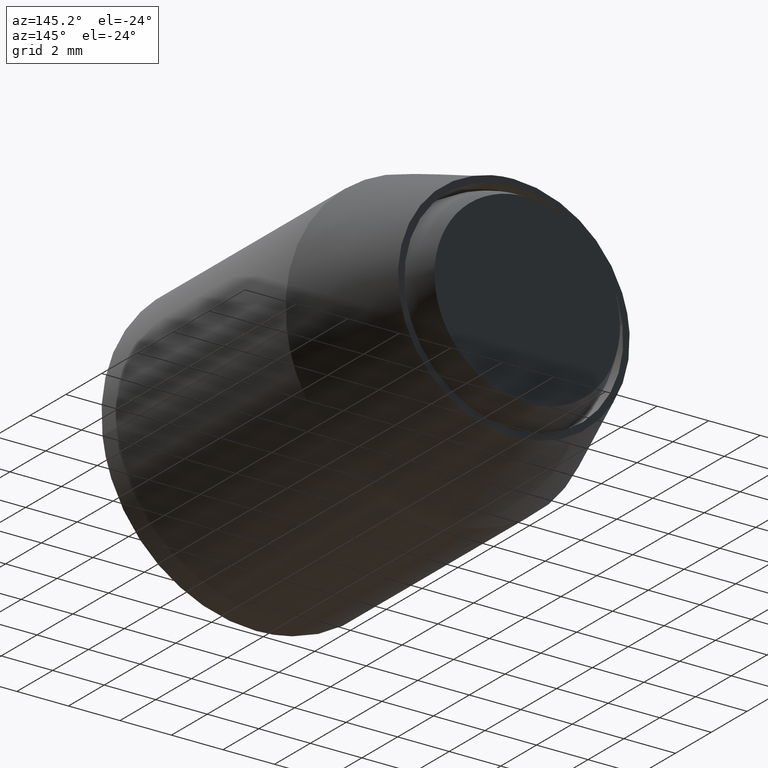
[diagram: clean part render]
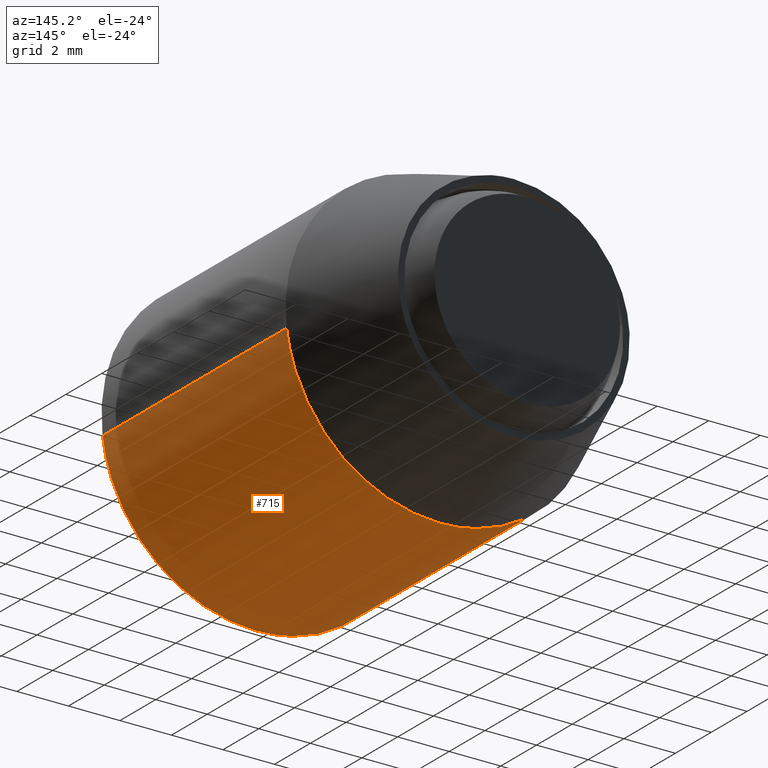
[diagram: same view with one face highlighted and labeled with its STEP entity id]
A machine part, auxiliary view. The second image highlights one B-rep face of the part: STEP entity #715.
In plain terms, the highlighted face is a freeform B-spline surface patch.
Its self-contained STEP definition (entity closure, byte-faithful):
#252=CARTESIAN_POINT('',(5.958057619192932,-14.400000000000000,-0.708201529482814));
#253=VERTEX_POINT('',#252);
#319=CARTESIAN_POINT('',(-5.988808851118314,-14.400000000000000,0.366290246615907));
#320=VERTEX_POINT('',#319);
#334=CARTESIAN_POINT('',(0.0,-14.400000000000000,-6.000000000000001));
#335=VERTEX_POINT('',#334);
#336=CARTESIAN_POINT('',(-5.988808851118314,-14.400000000000002,0.366290246615907));
#337=CARTESIAN_POINT('',(-5.999999999999999,-14.400000000000000,0.183315586420787));
#338=CARTESIAN_POINT('',(-6.0,-14.400000000000000,-1.025608E-015));
#339=CARTESIAN_POINT('',(-6.0,-14.400000000000006,-6.0));
#340=CARTESIAN_POINT('',(0.0,-14.400000000000000,-6.000000000000001));
#348=(BOUNDED_CURVE()B_SPLINE_CURVE(2,(#336,#337,#338,#339,#340),.UNSPECIFIED.,.F.,.U.)B_SPLINE_CURVE_WITH_KNOTS((3,2,3),(0.739333019323000,0.750000000000000,1.0),.UNSPECIFIED.)CURVE()GEOMETRIC_REPRESENTATION_ITEM()RATIONAL_B_SPLINE_CURVE((0.976072164008749,0.987502854777970,1.0,0.707106781186548,1.0))REPRESENTATION_ITEM(''));
#349=EDGE_CURVE('',#320,#335,#348,.T.);
#351=CARTESIAN_POINT('',(0.0,-14.400000000000000,-6.000000000000001));
#352=CARTESIAN_POINT('',(5.329050649126889,-14.400000000000009,-6.000000000000002));
#353=CARTESIAN_POINT('',(5.958057619192932,-14.399999999999991,-0.708201529482814));
#361=(BOUNDED_CURVE()B_SPLINE_CURVE(2,(#351,#352,#353),.UNSPECIFIED.,.F.,.U.)B_SPLINE_CURVE_WITH_KNOTS((3,3),(0.0,0.229562583530028),.UNSPECIFIED.)CURVE()GEOMETRIC_REPRESENTATION_ITEM()RATIONAL_B_SPLINE_CURVE((1.0,0.731050703963032,0.956026969820694))REPRESENTATION_ITEM(''));
#362=EDGE_CURVE('',#335,#253,#361,.T.);
#518=CARTESIAN_POINT('',(-5.988808820275182,-4.121215999515002,0.366290748006480));
#519=VERTEX_POINT('',#518);
#563=CARTESIAN_POINT('',(5.958057613507930,-4.121216000000000,-0.708201577310656));
#564=VERTEX_POINT('',#563);
#580=CARTESIAN_POINT('',(0.0,-4.121216000000000,-6.000000000000001));
#581=VERTEX_POINT('',#580);
#582=CARTESIAN_POINT('',(0.0,-4.121216000000000,-6.000000000000001));
#583=CARTESIAN_POINT('',(5.329050606047210,-4.121216000000000,-6.0));
#584=CARTESIAN_POINT('',(5.958057613507930,-4.121216000000001,-0.708201577310656));
#592=(BOUNDED_CURVE()B_SPLINE_CURVE(2,(#582,#583,#584),.UNSPECIFIED.,.F.,.U.)B_SPLINE_CURVE_WITH_KNOTS((3,3),(0.0,0.229562582173367),.UNSPECIFIED.)CURVE()GEOMETRIC_REPRESENTATION_ITEM()RATIONAL_B_SPLINE_CURVE((1.0,0.731050705552459,0.956026967161581))REPRESENTATION_ITEM(''));
#593=EDGE_CURVE('',#581,#564,#592,.T.);
#595=CARTESIAN_POINT('',(-5.988808820275182,-4.121215999515002,0.366290748006480));
#596=CARTESIAN_POINT('',(-6.000000000000001,-4.121216000000000,0.183316334509770));
#597=CARTESIAN_POINT('',(-6.0,-4.121216000000000,-1.025608E-015));
#598=CARTESIAN_POINT('',(-6.0,-4.121215999999999,-6.0));
#599=CARTESIAN_POINT('',(0.0,-4.121216000000000,-6.000000000000001));
#607=(BOUNDED_CURVE()B_SPLINE_CURVE(2,(#595,#596,#597,#598,#599),.UNSPECIFIED.,.F.,.U.)B_SPLINE_CURVE_WITH_KNOTS((3,2,3),(0.739332976336339,0.750000000000000,1.0),.UNSPECIFIED.)CURVE()GEOMETRIC_REPRESENTATION_ITEM()RATIONAL_B_SPLINE_CURVE((0.976072071880122,0.987502804415964,1.0,0.707106781186548,1.0))REPRESENTATION_ITEM(''));
#608=EDGE_CURVE('',#519,#581,#607,.T.);
#670=CARTESIAN_POINT('',(5.958057613507930,-4.121216000000000,-0.708201577310656));
#671=CARTESIAN_POINT('',(5.958057619192932,-14.400000000000000,-0.708201529482814));
#672=QUASI_UNIFORM_CURVE('',1,(#670,#671),.UNSPECIFIED.,.F.,.U.);
#673=EDGE_CURVE('',#564,#253,#672,.T.);
#678=CARTESIAN_POINT('',(-5.988808820275182,-4.121215999515002,0.366290748006480));
#679=CARTESIAN_POINT('',(-5.988808851118314,-14.400000000000000,0.366290246615907));
#680=QUASI_UNIFORM_CURVE('',1,(#678,#679),.UNSPECIFIED.,.F.,.U.);
#681=EDGE_CURVE('',#519,#320,#680,.T.);
#689=CARTESIAN_POINT('',(-5.988808790531200,-3.864246399999998,0.366291237209141));
#690=CARTESIAN_POINT('',(-6.355100027740342,-3.864246399999999,-5.622517553322059));
#691=CARTESIAN_POINT('',(-0.366291237209142,-3.864246399999998,-5.988808790531201));
#692=CARTESIAN_POINT('',(5.289260945037006,-3.864246399999999,-6.334717180395167));
#693=CARTESIAN_POINT('',(5.958057158181998,-3.864246399999998,-0.708205407940552));
#694=CARTESIAN_POINT('',(-5.988808790531200,-14.663393839999999,0.366291237209141));
#695=CARTESIAN_POINT('',(-6.355100027740342,-14.663393840000001,-5.622517553322059));
#696=CARTESIAN_POINT('',(-0.366291237209142,-14.663393839999999,-5.988808790531201));
#697=CARTESIAN_POINT('',(5.289260945037006,-14.663393840000005,-6.334717180395167));
#698=CARTESIAN_POINT('',(5.958057158181998,-14.663393840000003,-0.708205407940552));
#706=(BOUNDED_SURFACE()B_SPLINE_SURFACE(2,1,((#689,#694),(#690,#695),(#691,#696),(#692,#697),(#693,#698)),.UNSPECIFIED.,.F.,.F.,.U.)B_SPLINE_SURFACE_WITH_KNOTS((3,2,3),(2,2),(0.0,9.941125496954278,19.484605974030391),(0.0,10.799147440000009),.UNSPECIFIED.)GEOMETRIC_REPRESENTATION_ITEM()RATIONAL_B_SPLINE_SURFACE(((1.0,1.0),(0.707106781186548,0.707106781186548),(1.0,1.0),(0.718822509939086,0.718822509939086),(0.977505800795127,0.977505800795127)))REPRESENTATION_ITEM('')SURFACE());
#707=ORIENTED_EDGE('',*,*,#362,.F.);
#708=ORIENTED_EDGE('',*,*,#349,.F.);
#709=ORIENTED_EDGE('',*,*,#681,.F.);
#710=ORIENTED_EDGE('',*,*,#608,.T.);
#711=ORIENTED_EDGE('',*,*,#593,.T.);
#712=ORIENTED_EDGE('',*,*,#673,.T.);
#713=EDGE_LOOP('',(#707,#708,#709,#710,#711,#712));
#714=FACE_OUTER_BOUND('',#713,.T.);
#715=ADVANCED_FACE('',(#714),#706,.T.);